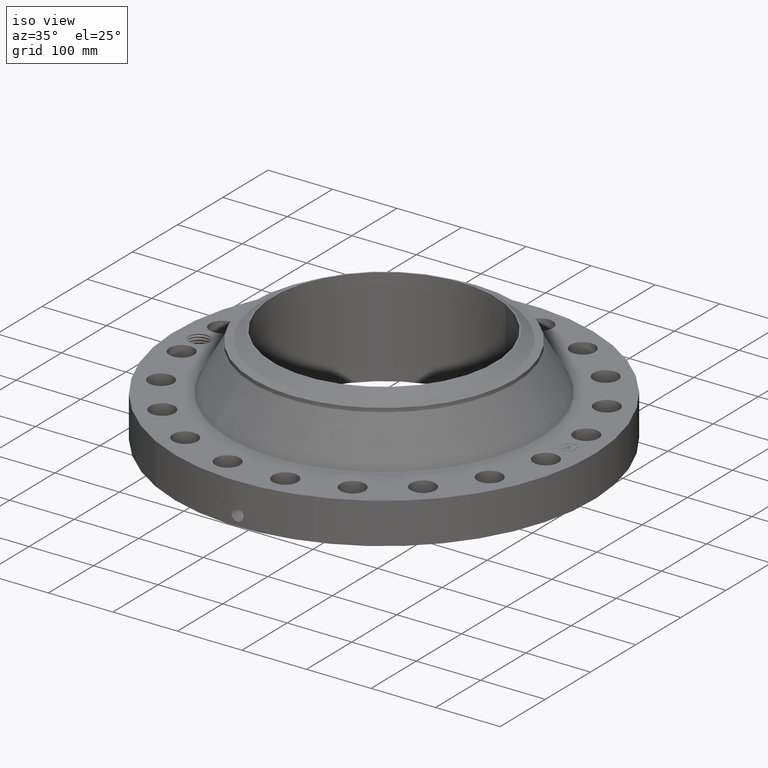
[diagram: clean part render]
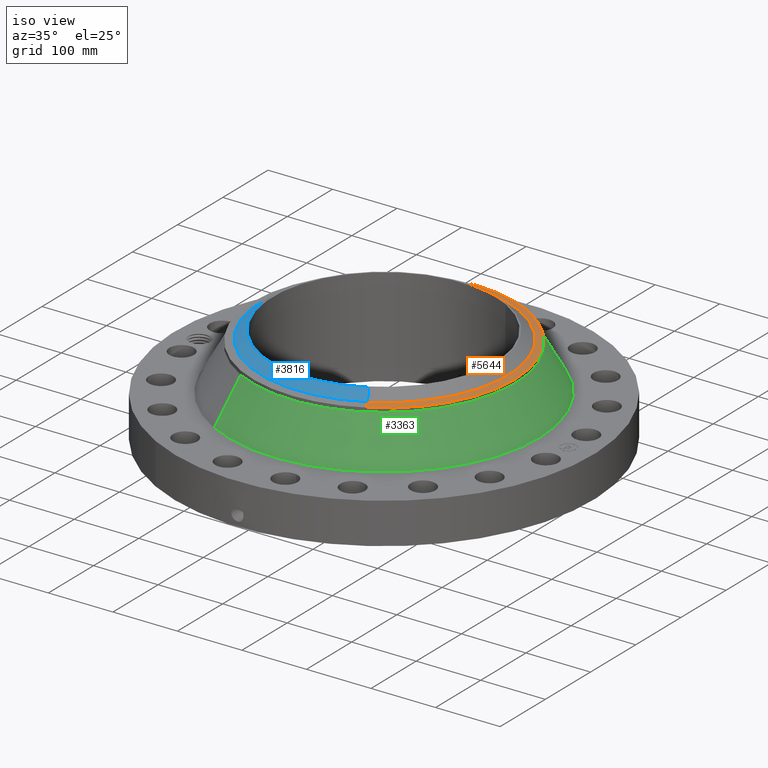
[diagram: same view with three faces highlighted in distinct colors, each labeled with its STEP entity id]
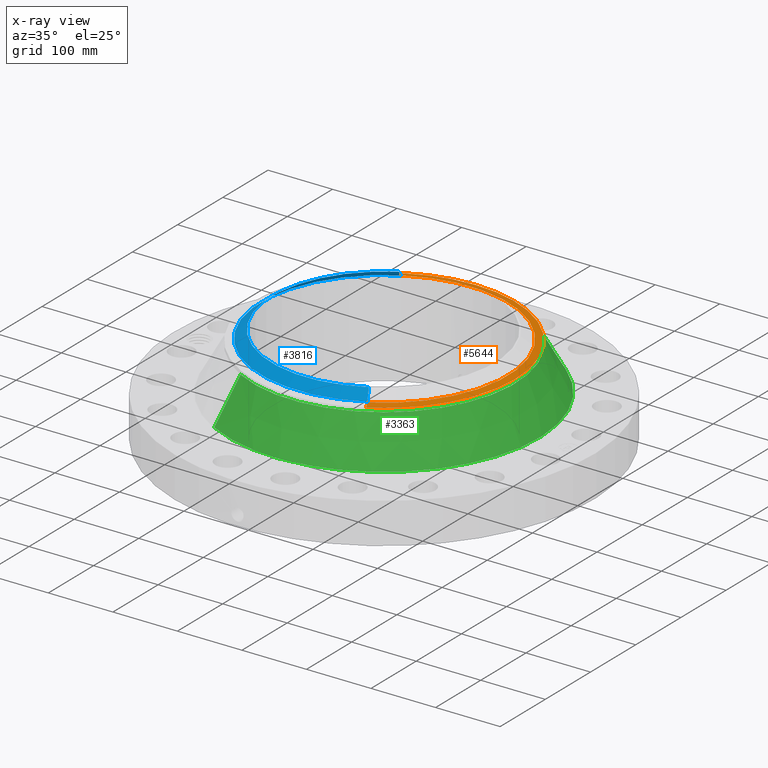
[diagram: x-ray of the same camera — body ghosted, the three highlighted faces saturated]
A machine part, iso view with three faces highlighted in distinct colors.
The next image is the same camera in x-ray (body ghosted, the three faces saturated) — at least one of them is partly hidden behind the body in this view.
Their STEP definitions:

[orange] entity #5644 — the highlighted conical surface has half-angle 80 deg.
#4167=AXIS2_PLACEMENT_3D('Circle Axis2P3D',#4165,#4166,$) ;
#4194=AXIS2_PLACEMENT_3D('Circle Axis2P3D',#4192,#4193,$) ;
#5006=AXIS2_PLACEMENT_3D('Circle Axis2P3D',#5004,#5005,$) ;
#5625=AXIS2_PLACEMENT_3D('Cone Axis2P3D',#5622,#5623,#5624) ;
#4162=CARTESIAN_POINT('Vertex',(3.83540430885,7.02066049515,5.6533902388)) ;
#4165=CARTESIAN_POINT('Axis2P3D Location',(0.,0.,5.6533902388)) ;
#4169=CARTESIAN_POINT('Vertex',(3.83540430885,-7.02066049515,5.6533902388)) ;
#4189=CARTESIAN_POINT('Vertex',(-3.83540430885,7.02066049515,5.6533902388)) ;
#4192=CARTESIAN_POINT('Axis2P3D Location',(0.,0.,5.6533902388)) ;
#4982=CARTESIAN_POINT('Vertex',(-3.62325554033,6.63232477921,5.73141601924)) ;
#4989=CARTESIAN_POINT('Vertex',(3.62325554033,-6.63232477921,5.73141601924)) ;
#5004=CARTESIAN_POINT('Axis2P3D Location',(0.,0.,5.73141601924)) ;
#5622=CARTESIAN_POINT('Axis2P3D Location',(0.,0.,5.73141601924)) ;
#5627=CARTESIAN_POINT('Line Origine',(-3.72932992459,6.82649263718,5.69240312902)) ;
#5632=CARTESIAN_POINT('Line Origine',(3.72932992459,-6.82649263718,5.69240312902)) ;
#4166=DIRECTION('Axis2P3D Direction',(0.,0.,-0.0393700787402)) ;
#4193=DIRECTION('Axis2P3D Direction',(0.,0.,-0.0393700787402)) ;
#5005=DIRECTION('Axis2P3D Direction',(0.,0.,0.0393700787402)) ;
#5623=DIRECTION('Axis2P3D Direction',(-0.,-0.,-0.0393700787402)) ;
#5624=DIRECTION('Axis2P3D XDirection',(0.0188750212049,-0.0345504945626,0.)) ;
#5628=DIRECTION('Vector Direction',(-0.0185882672208,0.0340255949157,-0.00683654242783)) ;
#5633=DIRECTION('Vector Direction',(0.0185882672208,-0.0340255949157,-0.00683654242783)) ;
#5629=VECTOR('Line Direction',#5628,0.0393700787402) ;
#5634=VECTOR('Line Direction',#5633,0.0393700787402) ;
#5638=ORIENTED_EDGE('',*,*,#5631,.F.) ;
#5639=ORIENTED_EDGE('',*,*,#5008,.F.) ;
#5640=ORIENTED_EDGE('',*,*,#5636,.T.) ;
#5641=ORIENTED_EDGE('',*,*,#4171,.T.) ;
#5642=ORIENTED_EDGE('',*,*,#4196,.F.) ;
#5644=ADVANCED_FACE('PartBody',(#5643),#5626,.T.) ;
#4168=CIRCLE('generated circle',#4167,8.00000000003) ;
#4195=CIRCLE('generated circle',#4194,8.00000000003) ;
#5007=CIRCLE('generated circle',#5006,7.55749380995) ;
#5626=CONICAL_SURFACE('Cone',#5625,7.55749380995,1.3962634016) ;
#4171=EDGE_CURVE('',#4170,#4163,#4168,.F.) ;
#4196=EDGE_CURVE('',#4190,#4163,#4195,.T.) ;
#5008=EDGE_CURVE('',#4990,#4983,#5007,.T.) ;
#5631=EDGE_CURVE('',#4983,#4190,#5630,.T.) ;
#5636=EDGE_CURVE('',#4990,#4170,#5635,.T.) ;
#5637=EDGE_LOOP('',(#5638,#5639,#5640,#5641,#5642)) ;
#5643=FACE_OUTER_BOUND('',#5637,.T.) ;
#5630=LINE('Line',#5627,#5629) ;
#5635=LINE('Line',#5632,#5634) ;
#4163=VERTEX_POINT('',#4162) ;
#4170=VERTEX_POINT('',#4169) ;
#4190=VERTEX_POINT('',#4189) ;
#4983=VERTEX_POINT('',#4982) ;
#4990=VERTEX_POINT('',#4989) ;

[blue] entity #3816 — the highlighted conical surface has half-angle 52.5 deg.
#2965=AXIS2_PLACEMENT_3D('Circle Axis2P3D',#2963,#2964,$) ;
#3789=AXIS2_PLACEMENT_3D('Cone Axis2P3D',#3786,#3787,#3788) ;
#3800=AXIS2_PLACEMENT_3D('Circle Axis2P3D',#3798,#3799,$) ;
#2958=CARTESIAN_POINT('Vertex',(3.2887346197,-6.01998834133,6.25000000003)) ;
#2960=CARTESIAN_POINT('Vertex',(-3.2887346197,6.01998834133,6.25000000003)) ;
#2963=CARTESIAN_POINT('Axis2P3D Location',(0.,0.,6.25000000002)) ;
#3786=CARTESIAN_POINT('Axis2P3D Location',(0.,0.,6.25000000003)) ;
#3791=CARTESIAN_POINT('Line Origine',(-3.44367592225,6.30360649323,6.00201437259)) ;
#3795=CARTESIAN_POINT('Vertex',(-3.5986172248,6.58722464514,5.75402874515)) ;
#3798=CARTESIAN_POINT('Axis2P3D Location',(0.,0.,5.75402874515)) ;
#3802=CARTESIAN_POINT('Vertex',(3.5986172248,-6.58722464514,5.75402874515)) ;
#3805=CARTESIAN_POINT('Line Origine',(3.44367592225,-6.30360649323,6.00201437259)) ;
#2964=DIRECTION('Axis2P3D Direction',(0.,0.,-0.0393700787402)) ;
#3787=DIRECTION('Axis2P3D Direction',(-0.,-0.,-0.0393700787402)) ;
#3788=DIRECTION('Axis2P3D XDirection',(-0.0188750212049,0.0345504945626,0.)) ;
#3792=DIRECTION('Vector Direction',(-0.014974561121,0.02741075027,-0.023966985394)) ;
#3799=DIRECTION('Axis2P3D Direction',(0.,0.,-0.0393700787402)) ;
#3806=DIRECTION('Vector Direction',(0.014974561121,-0.02741075027,-0.023966985394)) ;
#3793=VECTOR('Line Direction',#3792,0.0393700787402) ;
#3807=VECTOR('Line Direction',#3806,0.0393700787402) ;
#3811=ORIENTED_EDGE('',*,*,#2967,.F.) ;
#3812=ORIENTED_EDGE('',*,*,#3797,.T.) ;
#3813=ORIENTED_EDGE('',*,*,#3804,.T.) ;
#3814=ORIENTED_EDGE('',*,*,#3809,.F.) ;
#3816=ADVANCED_FACE('PartBody',(#3815),#3790,.T.) ;
#2966=CIRCLE('generated circle',#2965,6.85974015751) ;
#3801=CIRCLE('generated circle',#3800,7.50610248105) ;
#3790=CONICAL_SURFACE('Cone',#3789,6.85974015751,0.916297857297) ;
#2967=EDGE_CURVE('',#2961,#2959,#2966,.F.) ;
#3797=EDGE_CURVE('',#2961,#3796,#3794,.T.) ;
#3804=EDGE_CURVE('',#3796,#3803,#3801,.F.) ;
#3809=EDGE_CURVE('',#2959,#3803,#3808,.T.) ;
#3810=EDGE_LOOP('',(#3811,#3812,#3813,#3814)) ;
#3815=FACE_OUTER_BOUND('',#3810,.T.) ;
#3794=LINE('Line',#3791,#3793) ;
#3808=LINE('Line',#3805,#3807) ;
#2959=VERTEX_POINT('',#2958) ;
#2961=VERTEX_POINT('',#2960) ;
#3796=VERTEX_POINT('',#3795) ;
#3803=VERTEX_POINT('',#3802) ;

[green] entity #3363 — the highlighted conical surface has half-angle 29.353 deg.
#2622=AXIS2_PLACEMENT_3D('Circle Axis2P3D',#2620,#2621,$) ;
#3336=AXIS2_PLACEMENT_3D('Cone Axis2P3D',#3333,#3334,#3335) ;
#3347=AXIS2_PLACEMENT_3D('Circle Axis2P3D',#3345,#3346,$) ;
#2617=CARTESIAN_POINT('Vertex',(4.5380476851,8.30684056811,2.81117708173)) ;
#2620=CARTESIAN_POINT('Axis2P3D Location',(0.,0.,2.81117708173)) ;
#2624=CARTESIAN_POINT('Vertex',(-4.5380476851,-8.30684056811,2.81117708173)) ;
#3333=CARTESIAN_POINT('Axis2P3D Location',(0.,0.,5.41716976636)) ;
#3338=CARTESIAN_POINT('Line Origine',(4.18672599697,7.66375053163,4.11417342404)) ;
#3342=CARTESIAN_POINT('Vertex',(3.83540430885,7.02066049515,5.41716976636)) ;
#3345=CARTESIAN_POINT('Axis2P3D Location',(0.,0.,5.41716976636)) ;
#3349=CARTESIAN_POINT('Vertex',(-3.83540430885,-7.02066049515,5.41716976636)) ;
#3352=CARTESIAN_POINT('Line Origine',(-4.18672599697,-7.66375053163,4.11417342404)) ;
#2621=DIRECTION('Axis2P3D Direction',(0.,0.,-0.0393700787402)) ;
#3334=DIRECTION('Axis2P3D Direction',(0.,0.,-0.0393700787402)) ;
#3335=DIRECTION('Axis2P3D XDirection',(-0.0188750212049,-0.0345504945626,0.)) ;
#3339=DIRECTION('Vector Direction',(0.00925236524986,0.0169363409867,-0.0343155531978)) ;
#3346=DIRECTION('Axis2P3D Direction',(0.,0.,-0.0393700787402)) ;
#3353=DIRECTION('Vector Direction',(-0.00925236524986,-0.0169363409867,-0.0343155531978)) ;
#3340=VECTOR('Line Direction',#3339,0.0393700787402) ;
#3354=VECTOR('Line Direction',#3353,0.0393700787402) ;
#3358=ORIENTED_EDGE('',*,*,#2626,.F.) ;
#3359=ORIENTED_EDGE('',*,*,#3344,.T.) ;
#3360=ORIENTED_EDGE('',*,*,#3351,.T.) ;
#3361=ORIENTED_EDGE('',*,*,#3356,.F.) ;
#3363=ADVANCED_FACE('PartBody',(#3362),#3337,.T.) ;
#2623=CIRCLE('generated circle',#2622,9.46559438262) ;
#3348=CIRCLE('generated circle',#3347,8.00000000003) ;
#3337=CONICAL_SURFACE('Cone',#3336,8.00000000003,0.512308856485) ;
#2626=EDGE_CURVE('',#2618,#2625,#2623,.T.) ;
#3344=EDGE_CURVE('',#2618,#3343,#3341,.F.) ;
#3351=EDGE_CURVE('',#3343,#3350,#3348,.T.) ;
#3356=EDGE_CURVE('',#2625,#3350,#3355,.F.) ;
#3357=EDGE_LOOP('',(#3358,#3359,#3360,#3361)) ;
#3362=FACE_OUTER_BOUND('',#3357,.T.) ;
#3341=LINE('Line',#3338,#3340) ;
#3355=LINE('Line',#3352,#3354) ;
#2618=VERTEX_POINT('',#2617) ;
#2625=VERTEX_POINT('',#2624) ;
#3343=VERTEX_POINT('',#3342) ;
#3350=VERTEX_POINT('',#3349) ;